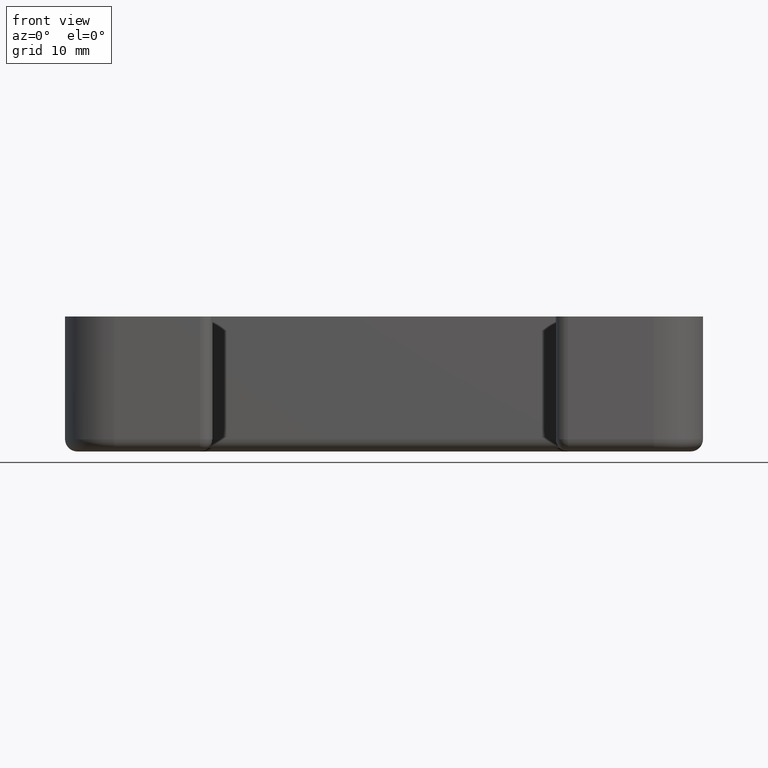
[diagram: clean part render]
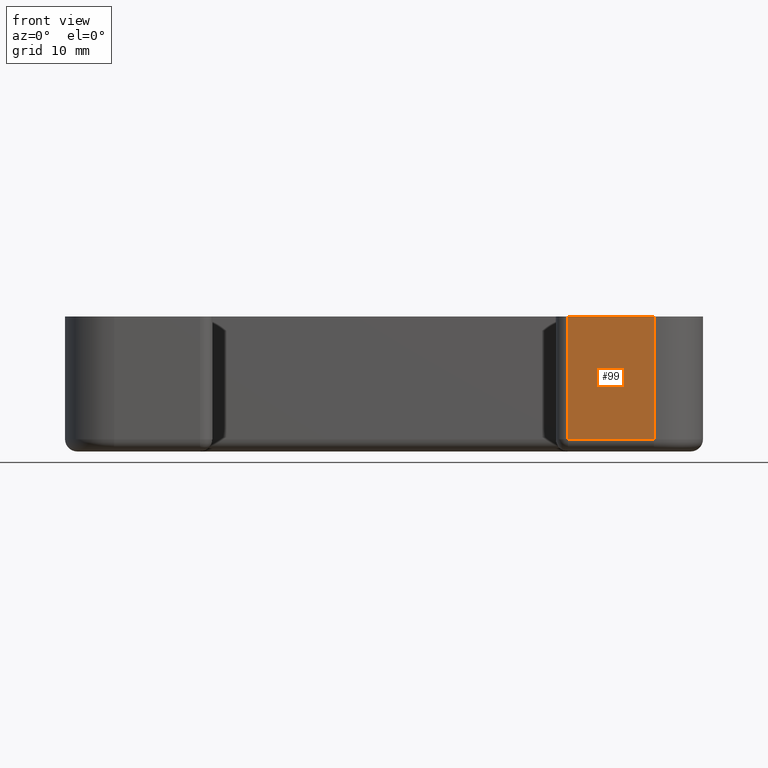
[diagram: same view with one face highlighted and labeled with its STEP entity id]
A machine part, front view. The second image highlights one B-rep face of the part: STEP entity #99.
In plain terms, the highlighted planar face has unit normal (-0, -1, 0).
Its self-contained STEP definition (entity closure, byte-faithful):
#99 = ADVANCED_FACE( '', ( #196 ), #197, .T. );
#196 = FACE_OUTER_BOUND( '', #339, .T. );
#197 = PLANE( '', #340 );
#339 = EDGE_LOOP( '', ( #672, #673, #674, #675 ) );
#340 = AXIS2_PLACEMENT_3D( '', #676, #677, #678 );
#672 = ORIENTED_EDGE( '', *, *, #1123, .T. );
#673 = ORIENTED_EDGE( '', *, *, #1124, .T. );
#674 = ORIENTED_EDGE( '', *, *, #1125, .F. );
#675 = ORIENTED_EDGE( '', *, *, #1014, .T. );
#676 = CARTESIAN_POINT( '', ( 44.0000000000000, -27.0000000000000, -3.46944695195361E-015 ) );
#677 = DIRECTION( '', ( -4.44089209850063E-017, -1.00000000000000, 0.000000000000000 ) );
#678 = DIRECTION( '', ( 1.00000000000000, -4.44089209850063E-017, 0.000000000000000 ) );
#1014 = EDGE_CURVE( '', #1207, #1205, #1208, .T. );
#1123 = EDGE_CURVE( '', #1205, #1400, #1401, .T. );
#1124 = EDGE_CURVE( '', #1400, #1402, #1403, .F. );
#1125 = EDGE_CURVE( '', #1207, #1402, #1404, .T. );
#1205 = VERTEX_POINT( '', #1497 );
#1207 = VERTEX_POINT( '', #1499 );
#1208 = LINE( '', #1500, #1501 );
#1400 = VERTEX_POINT( '', #1757 );
#1401 = LINE( '', #1758, #1759 );
#1402 = VERTEX_POINT( '', #1760 );
#1403 = LINE( '', #1761, #1762 );
#1404 = LINE( '', #1763, #1764 );
#1497 = CARTESIAN_POINT( '', ( 30.0000000000000, -27.0000000000000, -3.46944695195361E-015 ) );
#1499 = CARTESIAN_POINT( '', ( 44.0000000000000, -27.0000000000000, -3.46944695195361E-015 ) );
#1500 = CARTESIAN_POINT( '', ( 44.0000000000000, -27.0000000000000, -3.46944695195361E-015 ) );
#1501 = VECTOR( '', #1878, 1000.00000000000 );
#1757 = CARTESIAN_POINT( '', ( 30.0000000000000, -27.0000000000000, -20.0000000000000 ) );
#1758 = CARTESIAN_POINT( '', ( 30.0000000000000, -27.0000000000000, -3.46944695195361E-015 ) );
#1759 = VECTOR( '', #2075, 1000.00000000000 );
#1760 = CARTESIAN_POINT( '', ( 44.0000000000000, -27.0000000000000, -20.0000000000000 ) );
#1761 = CARTESIAN_POINT( '', ( 44.0000000000000, -27.0000000000000, -20.0000000000000 ) );
#1762 = VECTOR( '', #2076, 1000.00000000000 );
#1763 = CARTESIAN_POINT( '', ( 44.0000000000000, -27.0000000000000, -3.46944695195361E-015 ) );
#1764 = VECTOR( '', #2077, 1000.00000000000 );
#1878 = DIRECTION( '', ( -1.00000000000000, 4.44089209850063E-017, 0.000000000000000 ) );
#2075 = DIRECTION( '', ( 0.000000000000000, 0.000000000000000, -1.00000000000000 ) );
#2076 = DIRECTION( '', ( -1.00000000000000, 4.44089209850063E-017, 0.000000000000000 ) );
#2077 = DIRECTION( '', ( 0.000000000000000, 0.000000000000000, -1.00000000000000 ) );